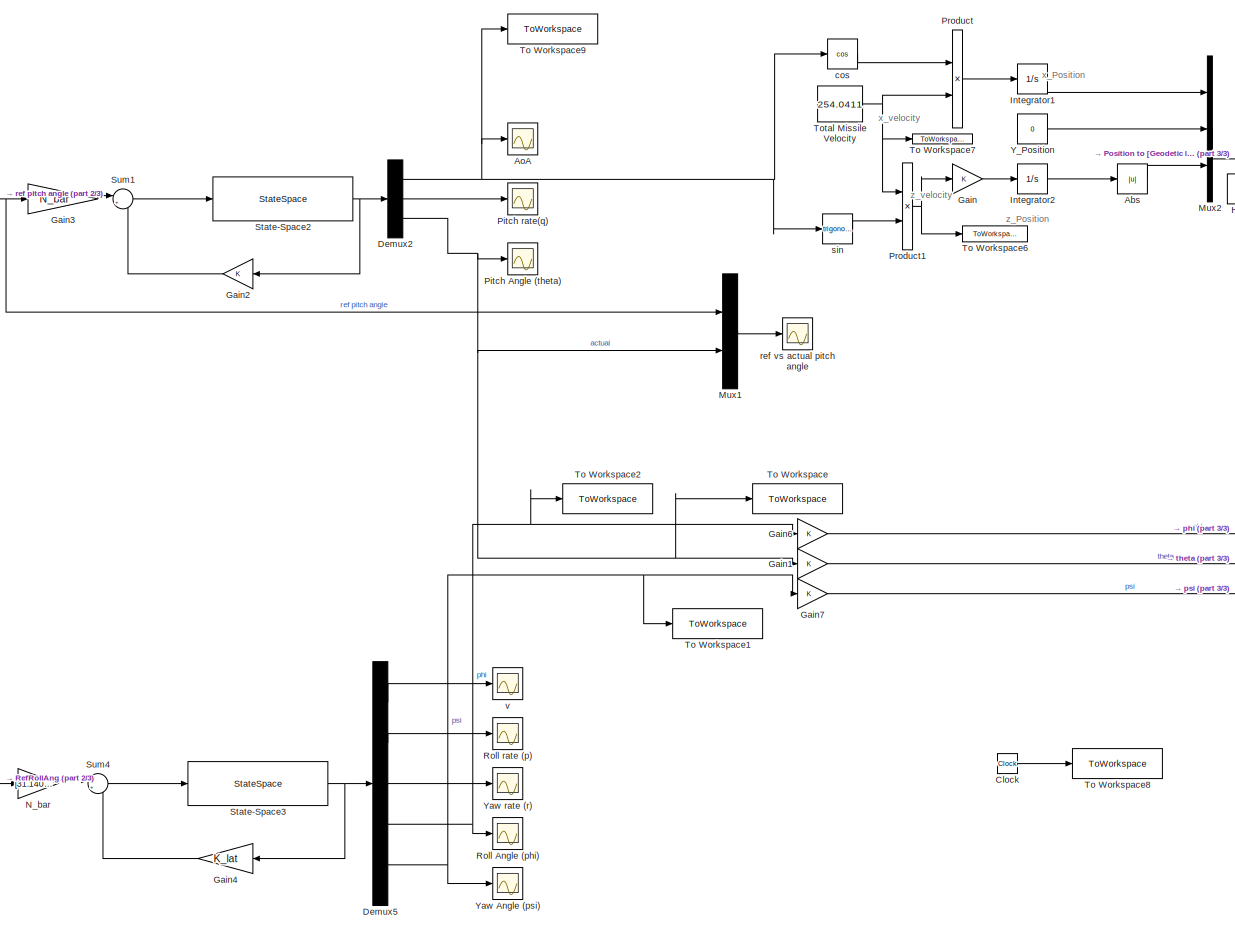
[diagram: root canvas - part 1/3, center side, full height]
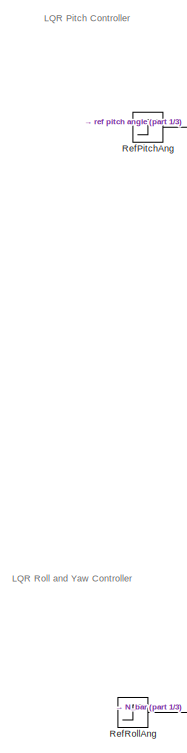
[diagram: root canvas - part 2/3, left side, full height]
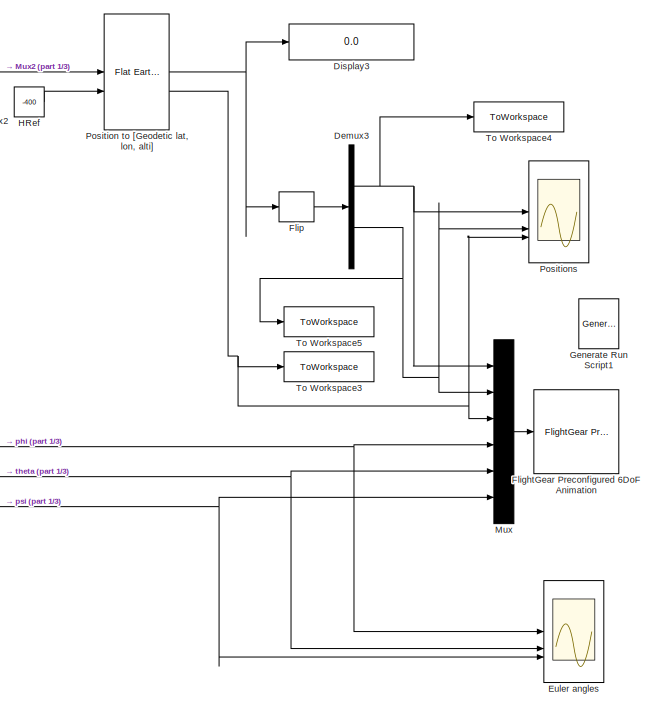
[diagram: root canvas - part 3/3, right side, full height]
MODEL slx_e28541c9c1a7
KIND model
CONFIG AbsTol = auto
CONFIG EnableMultiTasking = off
CONFIG FixedStep = auto
CONFIG MaxStep = auto
CONFIG MinStep = auto
CONFIG RelTol = 1e-3
CONFIG SampleTimeConstraint = Unconstrained
CONFIG SolverName = VariableStepAuto
CONFIG StartTime = 0.0
CONFIG StopTime = 10
BLOCK [Abs] Abs
  NameLocation = top
  SaturateOnIntegerOverflow = off
BLOCK [Scope] AoA
  Floating = off
  NumInputPorts = 1
  ScopeSpecificationString = Simulink.scopes.TimeScopeBlockCfg('CurrentConfiguration', extmgr.ConfigurationSet(extmgr.Configuration('Core','General UI',true),extmgr.Configuration('Core','Source UI',true),extmgr.Configuration('Sources','WiredSimulink',true,'DataLoggingVariableName','ScopeData1'),extmgr.Configuration('Visuals','Time Domain',true,'SerializedDisplays',{struct('MinYLimReal','-1.00000','MaxYLimReal','1.00000','YLab...<+1396ch>
BLOCK [Clock] Clock
BLOCK [Demux] Demux2
  Outputs = 3
BLOCK [Demux] Demux3
  Outputs = 2
BLOCK [Demux] Demux5
  Outputs = 5
BLOCK [Display] Display3
  Decimation = 2
  Format = long
BLOCK [Scope] Euler angles
  Floating = off
  NumInputPorts = 3
  ScopeSpecificationString = Simulink.scopes.TimeScopeBlockCfg('CurrentConfiguration', extmgr.ConfigurationSet(extmgr.Configuration('Core','General UI',true,'FigureColor',[1 1 1]),extmgr.Configuration('Core','Source UI',true),extmgr.Configuration('Sources','WiredSimulink',true,'DataLoggingVariableName','ScopeData1'),extmgr.Configuration('Visuals','Time Domain',true,'SerializedDisplays',{struct('MinYLimReal','-0.1258','MaxYLim...<+1786ch>
BLOCK [Reference] FlightGear Preconfigured 6DoF Animation  REF=aerolibfltsims/FlightGear
Preconfigured
6DoF Animation
  SourceBlock = aerolibfltsims/FlightGear\nPreconfigured\n6DoF Animation
  SourceType = FlightGearQuick6DoFAnimation
BLOCK [DSPFlip] Flip
BLOCK [Gain] Gain
BLOCK [Gain] Gain1
BLOCK [Gain] Gain2
  Gain = K
  Multiplication = Matrix(K*u)
BLOCK [Gain] Gain3
  Gain = N_bar
BLOCK [Gain] Gain4
  Gain = K_lat
  Multiplication = Matrix(K*u)
BLOCK [Gain] Gain6
BLOCK [Gain] Gain7
BLOCK [Reference] Generate Run Script1  REF=aerolibfltsims/Generate
Run Script
  SourceBlock = aerolibfltsims/Generate\nRun Script
  SourceType = Generate FlightGear Run Script
BLOCK [Constant] HRef
  Value = -400
BLOCK [Integrator] Integrator1
BLOCK [Integrator] Integrator2
  InitialCondition = -500
BLOCK [Mux] Mux
  DisplayOption = bar
  Inputs = 6
BLOCK [Mux] Mux1
  DisplayOption = bar
  Inputs = 2
BLOCK [Mux] Mux2
  DisplayOption = bar
  Inputs = 3
BLOCK [Gain] N_bar
  Gain = [31.1404025894999;5.651724880901047]
BLOCK [Scope] Pitch Angle (theta)
  Floating = off
  NumInputPorts = 1
  ScopeSpecificationString = Simulink.scopes.TimeScopeBlockCfg('CurrentConfiguration', extmgr.ConfigurationSet(extmgr.Configuration('Core','General UI',true,'FigureColor',[1 1 1]),extmgr.Configuration('Core','Source UI',true),extmgr.Configuration('Sources','WiredSimulink',true,'DataLoggingVariableName','ScopeData2'),extmgr.Configuration('Visuals','Time Domain',true,'SerializedDisplays',{struct('MinYLimReal','-1.24995','MaxYLi...<+1540ch>
BLOCK [Scope] Pitch rate(q)
  Floating = off
  NumInputPorts = 1
  ScopeSpecificationString = Simulink.scopes.TimeScopeBlockCfg('CurrentConfiguration', extmgr.ConfigurationSet(extmgr.Configuration('Core','General UI',true),extmgr.Configuration('Core','Source UI',true),extmgr.Configuration('Sources','WiredSimulink',true,'DataLoggingVariableName','ScopeData3'),extmgr.Configuration('Visuals','Time Domain',true,'SerializedDisplays',{struct('MinYLimReal','-0.79914','MaxYLimReal','7.19226','YLab...<+1367ch>
BLOCK [Reference] Position to [Geodetic lat, lon, alti]  REF=aerolibtransform2/Flat Earth to LLA
  SourceBlock = aerolibtransform2/Flat Earth to LLA
  SourceType = Flat Earth to LLA
BLOCK [Scope] Positions
  Floating = off
  NumInputPorts = 3
  ScopeSpecificationString = Simulink.scopes.TimeScopeBlockCfg('CurrentConfiguration', extmgr.ConfigurationSet(extmgr.Configuration('Core','General UI',true),extmgr.Configuration('Core','Source UI',true),extmgr.Configuration('Sources','WiredSimulink',true,'DataLoggingVariableName','ScopeData1'),extmgr.Configuration('Visuals','Time Domain',true,'SerializedDisplays',{struct('MinYLimReal','-496.34468','MaxYLimReal','93.96141','Y...<+1459ch>
BLOCK [Product] Product
BLOCK [Product] Product1
BLOCK [Step] RefPitchAng
  SampleTime = 0
  Time = 0
BLOCK [Step] RefRollAng
  SampleTime = 0
  Time = 0
BLOCK [Scope] Roll Angle (phi)
  Floating = off
  NumInputPorts = 1
  ScopeSpecificationString = Simulink.scopes.TimeScopeBlockCfg('CurrentConfiguration', extmgr.ConfigurationSet(extmgr.Configuration('Core','General UI',true,'FigureColor',[1 1 1]),extmgr.Configuration('Core','Source UI',true),extmgr.Configuration('Sources','WiredSimulink',true,'DataLoggingVariableName','ScopeData4'),extmgr.Configuration('Visuals','Time Domain',true,'SerializedDisplays',{struct('MinYLimReal','-0.21315','MaxYLi...<+1532ch>
BLOCK [Scope] Roll rate (p)
  Floating = off
  NumInputPorts = 1
  ScopeSpecificationString = Simulink.scopes.TimeScopeBlockCfg('CurrentConfiguration', extmgr.ConfigurationSet(extmgr.Configuration('Core','General UI',true),extmgr.Configuration('Core','Source UI',true),extmgr.Configuration('Sources','WiredSimulink',true,'DataLoggingVariableName','ScopeData3'),extmgr.Configuration('Visuals','Time Domain',true,'SerializedDisplays',{struct('MinYLimReal','-1.25263','MaxYLimReal','4.64934','YLab...<+1367ch>
BLOCK [StateSpace] State-Space2
  A = A
  B = B
  C = eye(3)
  ContinuousStateAttributes = {'aoa', 'pitch_rate', 'pitch_angle'}
  D = [0;0;0]
  InitialCondition = 0
BLOCK [StateSpace] State-Space3
  A = A_lat
  B = B_lat
  C = C_lat
  ContinuousStateAttributes = {'v', 'p', 'r','phi','psi'}
  D = D_lat
  InitialCondition = 0
BLOCK [Sum] Sum1
  Inputs = |+-
BLOCK [Sum] Sum4
  Inputs = |+-
BLOCK [ToWorkspace] To Workspace
  FixptAsFi = on
  MaxDataPoints = inf
  SampleTime = -1
  VariableName = PitchAngle
BLOCK [ToWorkspace] To Workspace1
  FixptAsFi = on
  MaxDataPoints = inf
  SampleTime = -1
  VariableName = YawAngle
BLOCK [ToWorkspace] To Workspace2
  FixptAsFi = on
  MaxDataPoints = inf
  SampleTime = -1
  VariableName = RollAngle
BLOCK [ToWorkspace] To Workspace3
  FixptAsFi = on
  MaxDataPoints = inf
  SampleTime = -1
  VariableName = altitude
BLOCK [ToWorkspace] To Workspace4
  FixptAsFi = on
  MaxDataPoints = inf
  SampleTime = -1
  VariableName = long
BLOCK [ToWorkspace] To Workspace5
  FixptAsFi = on
  MaxDataPoints = inf
  SampleTime = -1
  VariableName = lat
BLOCK [ToWorkspace] To Workspace6
  FixptAsFi = on
  MaxDataPoints = inf
  SampleTime = -1
  VariableName = z_vel
BLOCK [ToWorkspace] To Workspace7
  FixptAsFi = on
  MaxDataPoints = inf
  SampleTime = -1
  VariableName = x_vel
BLOCK [ToWorkspace] To Workspace8
  FixptAsFi = on
  MaxDataPoints = inf
  SampleTime = -1
  VariableName = time
BLOCK [ToWorkspace] To Workspace9
  FixptAsFi = on
  MaxDataPoints = inf
  SampleTime = -1
  VariableName = AoA
BLOCK [Constant] Total Missile Velocity
  Value = 254.0411
BLOCK [Constant] Y_Position
  Value = 0
BLOCK [Scope] Yaw Angle (psi)
  Floating = off
  NumInputPorts = 1
  ScopeSpecificationString = Simulink.scopes.TimeScopeBlockCfg('CurrentConfiguration', extmgr.ConfigurationSet(extmgr.Configuration('Core','General UI',true,'FigureColor',[1 1 1]),extmgr.Configuration('Core','Source UI',true),extmgr.Configuration('Sources','WiredSimulink',true,'DataLoggingVariableName','ScopeData5'),extmgr.Configuration('Visuals','Time Domain',true,'SerializedDisplays',{struct('MinYLimReal','-6.28223','MaxYLi...<+1537ch>
BLOCK [Scope] Yaw rate (r)
  Floating = off
  NumInputPorts = 1
  ScopeSpecificationString = Simulink.scopes.TimeScopeBlockCfg('CurrentConfiguration', extmgr.ConfigurationSet(extmgr.Configuration('Core','General UI',true,'FigureColor',[1 1 1]),extmgr.Configuration('Core','Source UI',true),extmgr.Configuration('Sources','WiredSimulink',true,'DataLoggingVariableName','ScopeData2'),extmgr.Configuration('Visuals','Time Domain',true,'SerializedDisplays',{struct('MinYLimReal','-0.1543','MaxYLim...<+1534ch>
BLOCK [Trigonometry] cos
  Operator = cos
BLOCK [Scope] ref vs actual pitch angle 
  Floating = off
  NumInputPorts = 1
  ScopeSpecificationString = Simulink.scopes.TimeScopeBlockCfg('CurrentConfiguration', extmgr.ConfigurationSet(extmgr.Configuration('Core','General UI',true,'FigureColor',[1 1 1]),extmgr.Configuration('Core','Source UI',true),extmgr.Configuration('Sources','WiredSimulink',true,'DataLoggingVariableName','ScopeData4'),extmgr.Configuration('Visuals','Time Domain',true,'SerializedDisplays',{struct('MinYLimReal','-0.8125','MaxYLim...<+1571ch>
BLOCK [Trigonometry] sin
BLOCK [Scope] v
  Floating = off
  NumInputPorts = 1
  ScopeSpecificationString = Simulink.scopes.TimeScopeBlockCfg('CurrentConfiguration', extmgr.ConfigurationSet(extmgr.Configuration('Core','General UI',true),extmgr.Configuration('Core','Source UI',true),extmgr.Configuration('Sources','WiredSimulink',true,'DataLoggingVariableName','ScopeData1'),extmgr.Configuration('Visuals','Time Domain',true,'SerializedDisplays',{struct('MinYLimReal','-0.05909','MaxYLimReal','0.2764','YLabe...<+1363ch>
ANNOTATION (root): LQR Pitch Controller
ANNOTATION (root): LQR Roll and Yaw Controller
ANNOTATION (root): x_Position
ANNOTATION (root): x_velocity
ANNOTATION (root): z_Position
ANNOTATION (root): z_velocity
LINE Abs:1 -> Mux2:3
LINE Clock:1 -> To Workspace8:1
NET Demux2:1 -> AoA:1, To Workspace9:1, cos:1, sin:1
LINE Demux2:2 -> Pitch rate(q):1
NET Demux2:3 -> Gain1:1, Mux1:2, Pitch Angle (theta):1, To Workspace:1
NET Demux3:1 -> Mux:1, Positions:1, To Workspace4:1
NET Demux3:2 -> Mux:2, Positions:2, To Workspace5:1
LINE Demux5:1 -> v:1
LINE Demux5:2 -> Roll rate (p):1
LINE Demux5:3 -> Yaw rate (r):1
NET Demux5:4 -> Gain6:1, Roll Angle (phi):1, To Workspace2:1
NET Demux5:5 -> Gain7:1, To Workspace1:1, Yaw Angle (psi):1
LINE Flip:1 -> Demux3:1
NET Gain1:1 -> Euler angles:2, Mux:5
LINE Gain2:1 -> Sum1:2
LINE Gain3:1 -> Sum1:1
LINE Gain4:1 -> Sum4:2
NET Gain6:1 -> Euler angles:1, Mux:4
NET Gain7:1 -> Euler angles:3, Mux:6
LINE Gain:1 -> Integrator2:1
LINE HRef:1 -> Position to [Geodetic lat, lon, alti]:2
LINE Integrator1:1 -> Mux2:1
LINE Integrator2:1 -> Abs:1
LINE Mux1:1 -> ref vs actual pitch angle :1
LINE Mux2:1 -> Position to [Geodetic lat, lon, alti]:1
LINE Mux:1 -> FlightGear Preconfigured 6DoF Animation:1
LINE N_bar:1 -> Sum4:1
NET Position to [Geodetic lat, lon, alti]:1 -> Display3:1, Flip:1
NET Position to [Geodetic lat, lon, alti]:2 -> Mux:3, Positions:3, To Workspace3:1
NET Product1:1 -> Gain:1, To Workspace6:1
LINE Product:1 -> Integrator1:1
NET RefPitchAng:1 -> Gain3:1, Mux1:1
LINE RefRollAng:1 -> N_bar:1
NET State-Space2:1 -> Demux2:1, Gain2:1
NET State-Space3:1 -> Demux5:1, Gain4:1
LINE Sum1:1 -> State-Space2:1
LINE Sum4:1 -> State-Space3:1
NET Total Missile Velocity:1 -> Product1:1, Product:2, To Workspace7:1
LINE Y_Position:1 -> Mux2:2
LINE cos:1 -> Product:1
LINE sin:1 -> Product1:2
note: NET lines group one-source signal fan-out (src -> all destinations, sorted); 1:1 wires keep LINE
